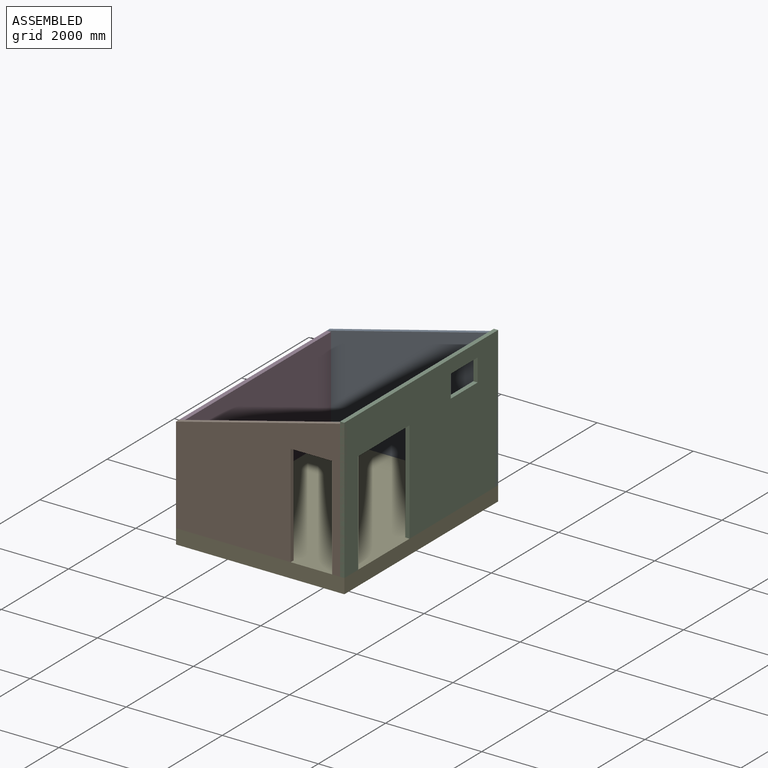
[diagram: assembled view]
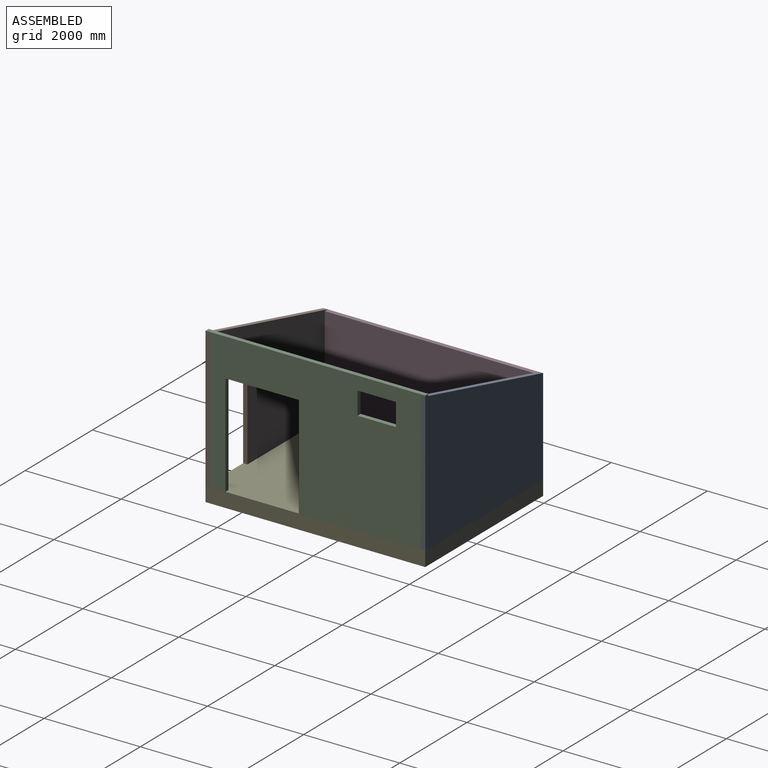
[diagram: assembled view, second angle]
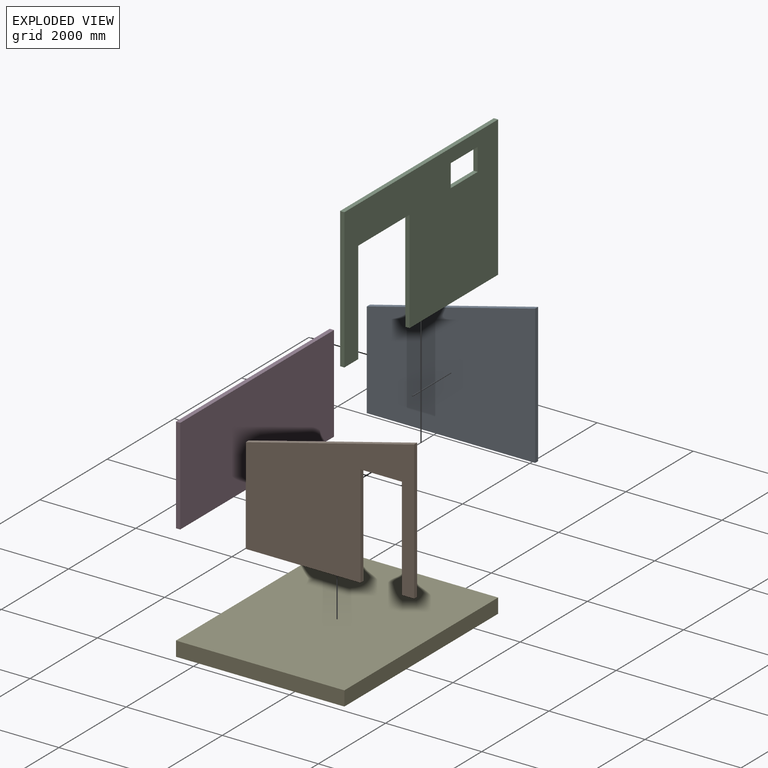
[diagram: exploded view]
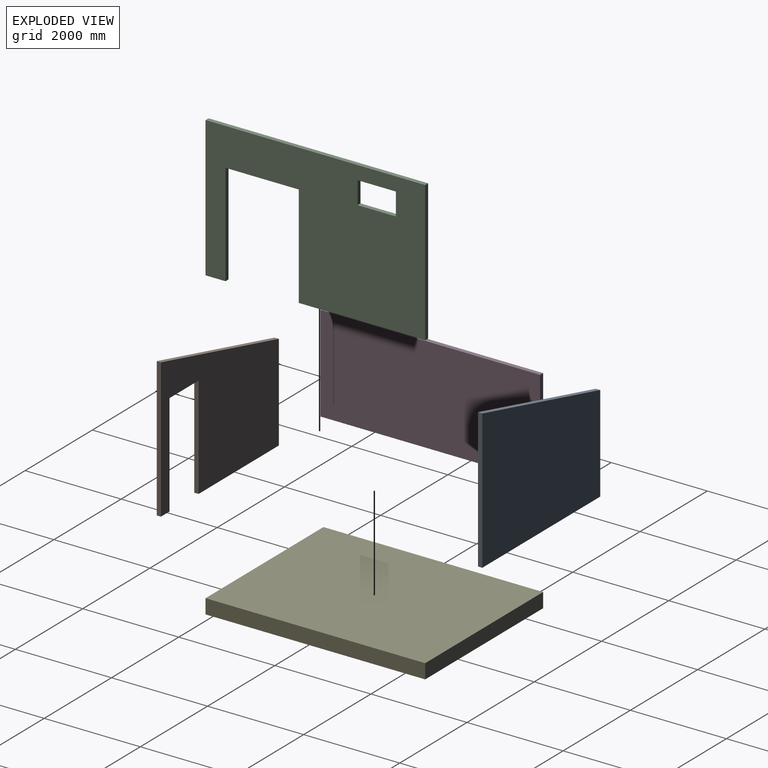
[diagram: exploded view, second angle]
ASSEMBLY  parts=5 mates=7
PART A: 6 faces, bbox 3505.2x88.9x2902.4 mm
  f0: plane 3505.2x88.9mm, normal (0,0,-1), area 311612.3mm2, adj f1,f3,f4,f5
  f1: plane 2902.37x88.9mm, normal (1,0,0), area 258020.6mm2, adj f0,f2,f4,f5
  f2: plane 3505.2x895.77mm, normal (-0.25,0,0.97), area 321626.8mm2, adj f1,f3,f4,f5
  f3: plane 2006.6x88.9mm, normal (-1,0,0), area 178386.7mm2, adj f0,f2,f4,f5
  f4: plane 3505.2x2902.37mm, normal (0,1,0), area 8603459.5mm2, adj f0,f1,f2,f3
  f5: plane 3505.2x2902.37mm, normal (0,-1,0), area 8603459.5mm2, adj f0,f1,f2,f3
PART B: 10 faces, bbox 3505.2x88.9x2902.4 mm
  f0: plane 254x88.9mm, normal (0,0,-1), area 22580.6mm2, adj f1,f2,f4,f7
  f1: plane 3505.2x2902.37mm, normal (0,1,0), area 6760882.6mm2, adj f0,f3,f4,f5,f6,f7,f8,f9
  f2: plane 3505.2x2902.37mm, normal (0,-1,0), area 6760882.6mm2, adj f0,f3,f4,f5,f6,f7,f8,f9
  f3: plane 2387.6x88.9mm, normal (0,0,-1), area 212257.6mm2, adj f1,f2,f6,f8
  f4: plane 2902.37x88.9mm, normal (1,0,0), area 258020.6mm2, adj f0,f1,f2,f5
  f5: plane 3505.2x895.77mm, normal (-0.25,0,0.97), area 321626.8mm2, adj f1,f2,f4,f6
  f6: plane 2006.6x88.9mm, normal (-1,0,0), area 178386.7mm2, adj f1,f2,f3,f5
  f7: plane 2133.6x88.9mm, normal (-1,0,0), area 189677mm2, adj f0,f1,f2,f9
  f8: plane 2133.6x88.9mm, normal (1,0,0), area 189677mm2, adj f1,f2,f3,f9
  f9: plane 863.6x88.9mm, normal (0,0,-1), area 76774mm2, adj f1,f2,f7,f8
PART C: 14 faces, bbox 4572x88.9x2921 mm
  f0: plane 469.9x88.9mm, normal (1,0,0), area 41774.2mm2, adj f1,f11,f12,f13
  f1: plane 800.1x88.9mm, normal (0,0,-1), area 71129mm2, adj f0,f2,f12,f13
  f2: plane 469.9x88.9mm, normal (-1,0,0), area 41774.2mm2, adj f1,f11,f12,f13
  f3: plane 414.67x88.9mm, normal (0,0,-1), area 36864mm2, adj f4,f10,f12,f13
  f4: plane 2133.6x88.9mm, normal (1,0,0), area 189677.3mm2, adj f3,f5,f12,f13
  f5: plane 1524x88.9mm, normal (0,0,-1), area 135483.8mm2, adj f4,f6,f12,f13
  f6: plane 2133.6x88.9mm, normal (-1,0,0), area 189677.3mm2, adj f5,f7,f12,f13
  f7: plane 2633.33x88.9mm, normal (0,0,-1), area 234103.6mm2, adj f6,f8,f12,f13
  f8: plane 2921x88.9mm, normal (1,0,0), area 259677.2mm2, adj f7,f9,f12,f13
  f9: plane 4572x88.9mm, normal (0,0,1), area 406451.3mm2, adj f8,f10,f12,f13
  f10: plane 2921x88.9mm, normal (-1,0,0), area 259677.2mm2, adj f3,f9,f12,f13
  f11: plane 800.1x88.9mm, normal (0,0,1), area 71129mm2, adj f0,f2,f12,f13
  f12: plane 4572x2921mm, normal (0,-1,0), area 9727238.6mm2, adj f0,f1,f2,f3,f4,f5,f6,f7
  f13: plane 4572x2921mm, normal (0,1,0), area 9727238.6mm2, adj f0,f1,f2,f3,f4,f5,f6,f7
PART D: 6 faces, bbox 4572x88.9x2006.6 mm
  f0: plane 2006.6x88.9mm, normal (1,0,0), area 178386.9mm2, adj f1,f3,f4,f5
  f1: plane 4572x88.9mm, normal (0,0,1), area 406451.3mm2, adj f0,f2,f4,f5
  f2: plane 2006.6x88.9mm, normal (-1,0,0), area 178386.9mm2, adj f1,f3,f4,f5
  f3: plane 4572x88.9mm, normal (0,0,-1), area 406451.3mm2, adj f0,f2,f4,f5
  f4: plane 4572x2006.6mm, normal (0,-1,0), area 9174175.2mm2, adj f0,f1,f2,f3
  f5: plane 4572x2006.6mm, normal (0,1,0), area 9174175.2mm2, adj f0,f1,f2,f3
PART E: 6 faces, bbox 3505.2x4572x304.8 mm
  f0: plane 3505.2x304.8mm, normal (0,-1,0), area 1068385mm2, adj f1,f3,f4,f5
  f1: plane 4572x304.8mm, normal (1,0,0), area 1393545.6mm2, adj f0,f2,f4,f5
  f2: plane 3505.2x304.8mm, normal (0,1,0), area 1068385mm2, adj f1,f3,f4,f5
  f3: plane 4572x304.8mm, normal (-1,0,0), area 1393545.6mm2, adj f0,f2,f4,f5
  f4: plane 4572x3505.2mm, normal (0,0,1), area 16025774.4mm2, adj f0,f1,f2,f3
  f5: plane 4572x3505.2mm, normal (0,0,-1), area 16025774.4mm2, adj f0,f1,f2,f3
PLACE A t=(-591.06,4454.63,535.85)mm
PLACE B t=(-591.06,-28.47,535.85)mm
PLACE C rot(axis=(0,0,1),90deg) t=(1072.64,6651.6,545.16)mm
PLACE D rot(axis=(0,0,1),90deg) t=(-2343.66,4369.25,87.96)mm
PLACE E t=(-591.06,2257.53,-1220.14)mm
MATE fastened E.f4 <-> B.f0  axis (0,0,1) through (1161.54,-28.47,-915.34)mm
MATE planar D.f5 <-> E.f3  axis (-1,0,0) through (-2343.66,-28.47,-915.34)mm
MATE fastened C.f3 <-> E.f4  axis (0,0,1) through (1161.54,-28.47,-915.34)mm
MATE fastened D.f3 <-> E.f4  axis (0,0,1) through (-2343.66,-28.47,-915.34)mm
MATE planar A.f4 <-> E.f2  axis (0,1,0) through (1161.54,4543.53,-915.34)mm
MATE fastened E.f4 <-> A.f0  axis (0,0,1) through (-2343.66,4543.53,-915.34)mm
MATE planar E.f1 <-> C.f12  axis (1,0,0) through (1161.54,4543.53,-915.34)mm
